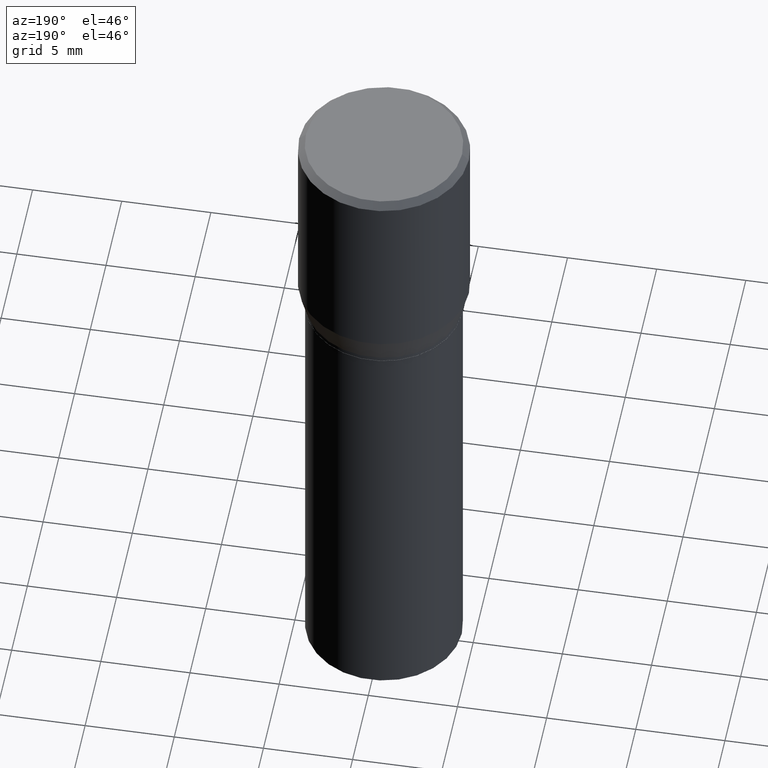
[diagram: clean part render]
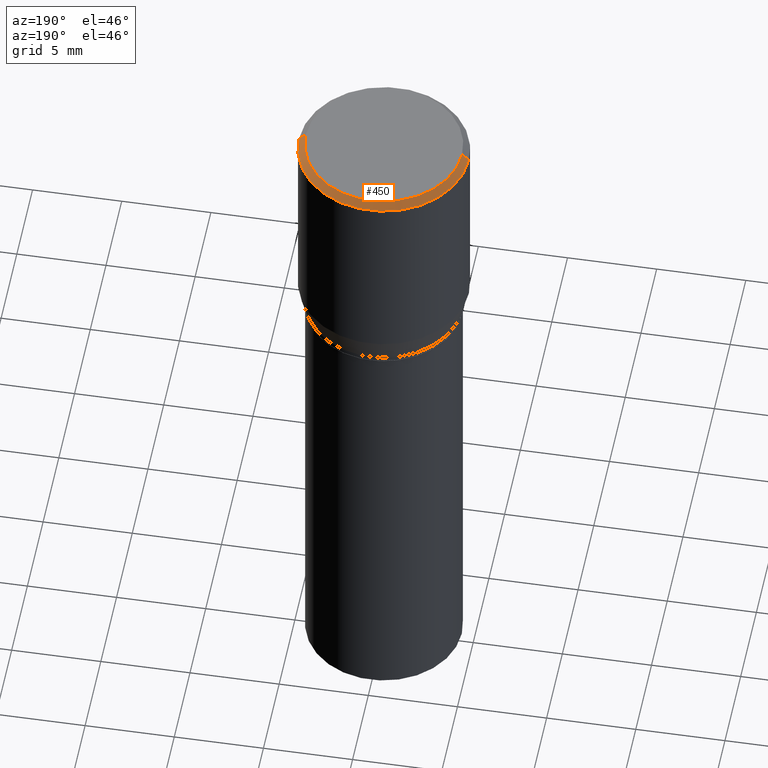
[diagram: same view with one face highlighted and labeled with its STEP entity id]
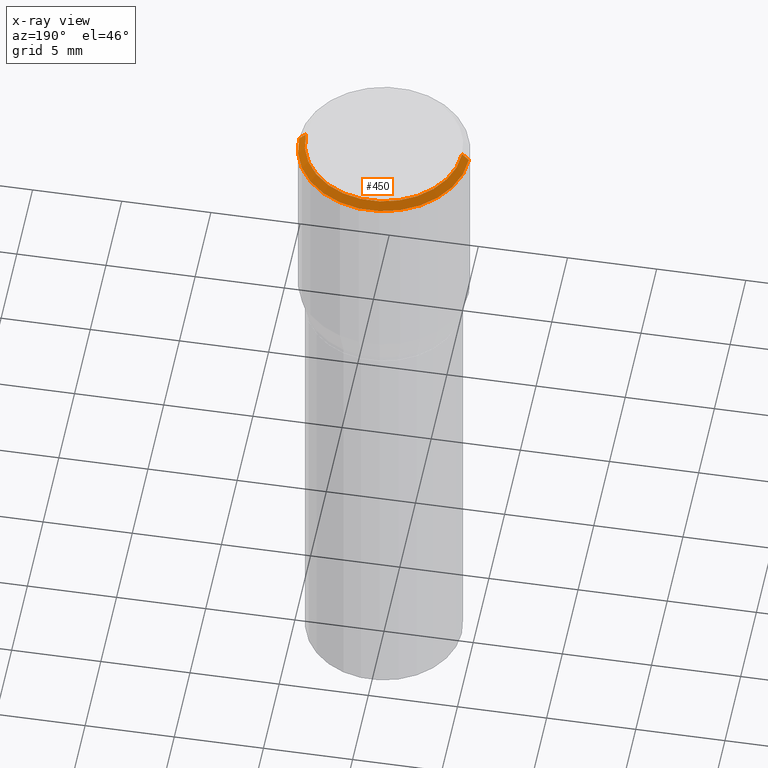
[diagram: x-ray of the same camera — body ghosted, the highlighted face saturated]
A machine part, auxiliary view. The second image highlights one B-rep face of the part: STEP entity #450.
The next image is the same camera in x-ray: the body ghosted, the highlighted face saturated — about 0% of this face is hidden behind the body in this view.
In plain terms, the highlighted conical surface has half-angle 45 deg.
Its self-contained STEP definition (entity closure, byte-faithful):
#9 = CARTESIAN_POINT ( 'NONE',  ( 0.1875000000000000278, -1.338715594664809642E-15, -0.01499999999999999944 ) ) ;
#11 = DIRECTION ( 'NONE',  ( -0.7071067811865483499, 2.468850131082265738E-15, -0.7071067811865466846 ) ) ;
#12 = AXIS2_PLACEMENT_3D ( 'NONE', #449, #237, #167 ) ;
#24 = FACE_OUTER_BOUND ( 'NONE', #347, .T. ) ;
#58 = CIRCLE ( 'NONE', #311, 0.1725000000000000144 ) ;
#71 = AXIS2_PLACEMENT_3D ( 'NONE', #209, #238, #179 ) ;
#81 = ORIENTED_EDGE ( 'NONE', *, *, #170, .F. ) ;
#83 = EDGE_CURVE ( 'NONE', #147, #181, #197, .T. ) ;
#93 = CARTESIAN_POINT ( 'NONE',  ( -0.1725000000000000144, 1.230747171942204192E-15, -2.636744989016075847E-17 ) ) ;
#96 = CONICAL_SURFACE ( 'NONE', #71, 0.1875000000000000278, 0.7853981633974495002 ) ;
#109 = ORIENTED_EDGE ( 'NONE', *, *, #83, .F. ) ;
#113 = EDGE_CURVE ( 'NONE', #453, #317, #370, .T. ) ;
#147 = VERTEX_POINT ( 'NONE', #93 ) ;
#167 = DIRECTION ( 'NONE',  ( 1.000000000000000000, -6.982962677686265922E-15, 0.000000000000000000 ) ) ;
#170 = EDGE_CURVE ( 'NONE', #453, #147, #58, .T. ) ;
#179 = DIRECTION ( 'NONE',  ( -1.000000000000000000, 6.982962677686265922E-15, 0.000000000000000000 ) ) ;
#181 = VERTEX_POINT ( 'NONE', #439 ) ;
#184 = ORIENTED_EDGE ( 'NONE', *, *, #113, .T. ) ;
#197 = LINE ( 'NONE', #334, #230 ) ;
#209 = CARTESIAN_POINT ( 'NONE',  ( 3.668203209277705088E-31, -5.237222008264718399E-17, -0.01499999999999999944 ) ) ;
#218 = CARTESIAN_POINT ( 'NONE',  ( 6.448077620501702025E-46, -9.206145924434830208E-32, -2.636744989015224123E-17 ) ) ;
#230 = VECTOR ( 'NONE', #11, 39.37007874015748143 ) ;
#237 = DIRECTION ( 'NONE',  ( -2.445468806185136597E-29, 3.491481338843145583E-15, 1.000000000000000000 ) ) ;
#238 = DIRECTION ( 'NONE',  ( 2.445468806185136597E-29, -3.491481338843145583E-15, -1.000000000000000000 ) ) ;
#264 = CARTESIAN_POINT ( 'NONE',  ( 0.1875000000000000278, -1.361677722148822285E-15, -0.01499999999999999944 ) ) ;
#285 = DIRECTION ( 'NONE',  ( -2.445468806185136597E-29, 3.491481338843145583E-15, 1.000000000000000000 ) ) ;
#307 = CARTESIAN_POINT ( 'NONE',  ( 0.1725000000000000144, -1.261075749640199308E-15, -2.636744989014362231E-17 ) ) ;
#311 = AXIS2_PLACEMENT_3D ( 'NONE', #218, #285, #330 ) ;
#317 = VERTEX_POINT ( 'NONE', #264 ) ;
#321 = EDGE_CURVE ( 'NONE', #317, #181, #405, .T. ) ;
#330 = DIRECTION ( 'NONE',  ( 1.000000000000000000, -6.982962677686266711E-15, 4.876912640186324808E-29 ) ) ;
#334 = CARTESIAN_POINT ( 'NONE',  ( -0.1875000000000000278, 1.256933281983527732E-15, -0.01499999999999999944 ) ) ;
#347 = EDGE_LOOP ( 'NONE', ( #81, #184, #426, #109 ) ) ;
#354 = VECTOR ( 'NONE', #394, 39.37007874015748143 ) ;
#370 = LINE ( 'NONE', #9, #354 ) ;
#394 = DIRECTION ( 'NONE',  ( 0.7071067811865483499, -7.319954787623257623E-15, -0.7071067811865466846 ) ) ;
#405 = CIRCLE ( 'NONE', #12, 0.1875000000000000278 ) ;
#426 = ORIENTED_EDGE ( 'NONE', *, *, #321, .T. ) ;
#439 = CARTESIAN_POINT ( 'NONE',  ( -0.1875000000000000278, 5.523056003441748841E-16, -0.01499999999999999944 ) ) ;
#449 = CARTESIAN_POINT ( 'NONE',  ( 3.668203209277705088E-31, -5.237222008264718399E-17, -0.01499999999999999944 ) ) ;
#450 = ADVANCED_FACE ( 'NONE', ( #24 ), #96, .T. ) ;
#453 = VERTEX_POINT ( 'NONE', #307 ) ;